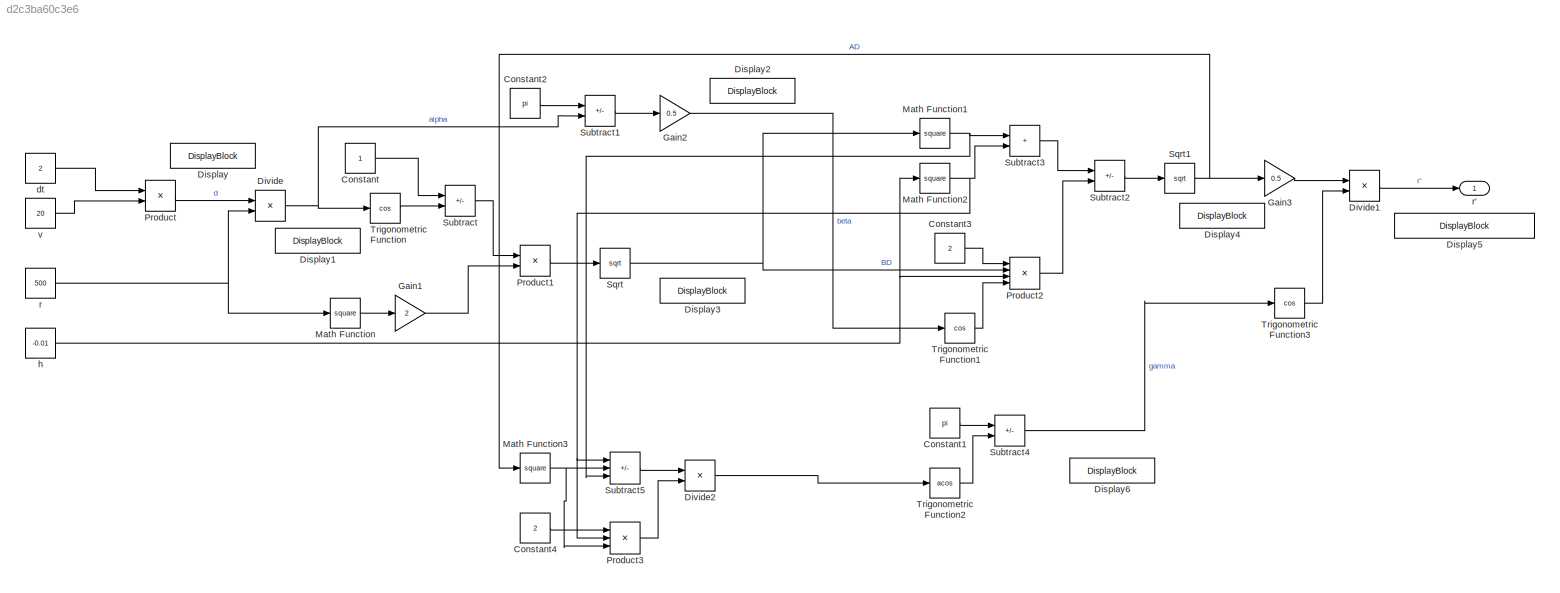
MODEL slx_d2c3ba60c3e6
KIND model
CONFIG AbsTol = auto
CONFIG EnableMultiTasking = off
CONFIG FixedStep = auto
CONFIG MaxStep = auto
CONFIG MinStep = auto
CONFIG RelTol = 1e-3
CONFIG SampleTimeConstraint = Unconstrained
CONFIG Solver = VariableStepAuto
CONFIG SolverName = VariableStepAuto
CONFIG StartTime = 0.0
CONFIG StopTime = 1
BLOCK [Constant] Constant
BLOCK [Constant] Constant1
  Value = pi
BLOCK [Constant] Constant2
  Value = pi
BLOCK [Constant] Constant3
  Value = 2
BLOCK [Constant] Constant4
  Value = 2
BLOCK [DisplayBlock] Display
  Format = short
  LabelPosition = Hide
  Transparency = 1
BLOCK [DisplayBlock] Display1
  Format = short
  LabelPosition = Hide
  Transparency = 1
BLOCK [DisplayBlock] Display2
  Format = short
  LabelPosition = Hide
  Transparency = 1
BLOCK [DisplayBlock] Display3
  Format = short
  LabelPosition = Hide
  Transparency = 1
BLOCK [DisplayBlock] Display4
  Format = short
  LabelPosition = Hide
  Transparency = 1
BLOCK [DisplayBlock] Display5
  Format = short
  LabelPosition = Hide
  Transparency = 1
BLOCK [DisplayBlock] Display6
  Format = short
  LabelPosition = Hide
  Transparency = 1
BLOCK [Product] Divide
  Inputs = */
  Ports = [2, 1]
BLOCK [Product] Divide1
  Inputs = */
  Ports = [2, 1]
BLOCK [Product] Divide2
  Inputs = */
  Ports = [2, 1]
BLOCK [Gain] Gain1
  Gain = 2
BLOCK [Gain] Gain2
  Gain = 0.5
BLOCK [Gain] Gain3
  Gain = 0.5
BLOCK [Math] Math Function
  Operator = square
  Ports = [1, 1]
BLOCK [Math] Math Function1
  Operator = square
  Ports = [1, 1]
BLOCK [Math] Math Function2
  Operator = square
  Ports = [1, 1]
BLOCK [Math] Math Function3
  Operator = square
  Ports = [1, 1]
BLOCK [Product] Product
  Ports = [2, 1]
BLOCK [Product] Product1
  Ports = [2, 1]
BLOCK [Product] Product2
  Inputs = 4
  Ports = [4, 1]
BLOCK [Product] Product3
  Inputs = 3
  Ports = [3, 1]
BLOCK [Sqrt] Sqrt
BLOCK [Sqrt] Sqrt1
BLOCK [Sum] Subtract
  IconShape = rectangular
  Inputs = +-
  Ports = [2, 1]
BLOCK [Sum] Subtract1
  IconShape = rectangular
  Inputs = +-
  Ports = [2, 1]
BLOCK [Sum] Subtract2
  IconShape = rectangular
  Inputs = +-
  Ports = [2, 1]
BLOCK [Sum] Subtract3
  IconShape = rectangular
  Ports = [2, 1]
BLOCK [Sum] Subtract4
  IconShape = rectangular
  Inputs = +-
  Ports = [2, 1]
BLOCK [Sum] Subtract5
  IconShape = rectangular
  Inputs = ++-
  Ports = [3, 1]
BLOCK [Trigonometry] Trigonometric Function
  Operator = cos
  Ports = [1, 1]
BLOCK [Trigonometry] Trigonometric Function1
  Operator = cos
  Ports = [1, 1]
BLOCK [Trigonometry] Trigonometric Function2
  Operator = acos
  Ports = [1, 1]
BLOCK [Trigonometry] Trigonometric Function3
  Operator = cos
  Ports = [1, 1]
BLOCK [Constant] dt
  Value = 2
BLOCK [Constant] h
  Value = -0.01
BLOCK [Constant] r
  Value = 500
BLOCK [Outport] r'
BLOCK [Constant] v
  Value = 20
LINE Constant1:1 -> Subtract4:1
LINE Constant2:1 -> Subtract1:1
LINE Constant3:1 -> Product2:1
LINE Constant4:1 -> Product3:1
LINE Constant:1 -> Subtract:1
LINE Divide1:1 -> r':1
LINE Divide2:1 -> Trigonometric Function2:1
NET Divide:1 -> Subtract1:2, Trigonometric Function:1
LINE Gain1:1 -> Product1:2
LINE Gain2:1 -> Trigonometric Function1:1
LINE Gain3:1 -> Divide1:1
NET Math Function1:1 -> Subtract3:1, Subtract5:3
NET Math Function2:1 -> Product3:2, Subtract3:2, Subtract5:1
NET Math Function3:1 -> Product3:3, Subtract5:2
LINE Math Function:1 -> Gain1:1
LINE Product1:1 -> Sqrt:1
LINE Product2:1 -> Subtract2:2
LINE Product3:1 -> Divide2:2
LINE Product:1 -> Divide:1
NET Sqrt1:1 -> Gain3:1, Math Function3:1
NET Sqrt:1 -> Math Function1:1, Product2:2
LINE Subtract1:1 -> Gain2:1
LINE Subtract2:1 -> Sqrt1:1
LINE Subtract3:1 -> Subtract2:1
LINE Subtract4:1 -> Trigonometric Function3:1
LINE Subtract5:1 -> Divide2:1
LINE Subtract:1 -> Product1:1
LINE Trigonometric Function1:1 -> Product2:4
LINE Trigonometric Function2:1 -> Subtract4:2
LINE Trigonometric Function3:1 -> Divide1:2
LINE Trigonometric Function:1 -> Subtract:2
LINE dt:1 -> Product:1
NET h:1 -> Math Function2:1, Product2:3
NET r:1 -> Divide:2, Math Function:1
LINE v:1 -> Product:2
note: NET lines group one-source signal fan-out (src -> all destinations, sorted); 1:1 wires keep LINE
